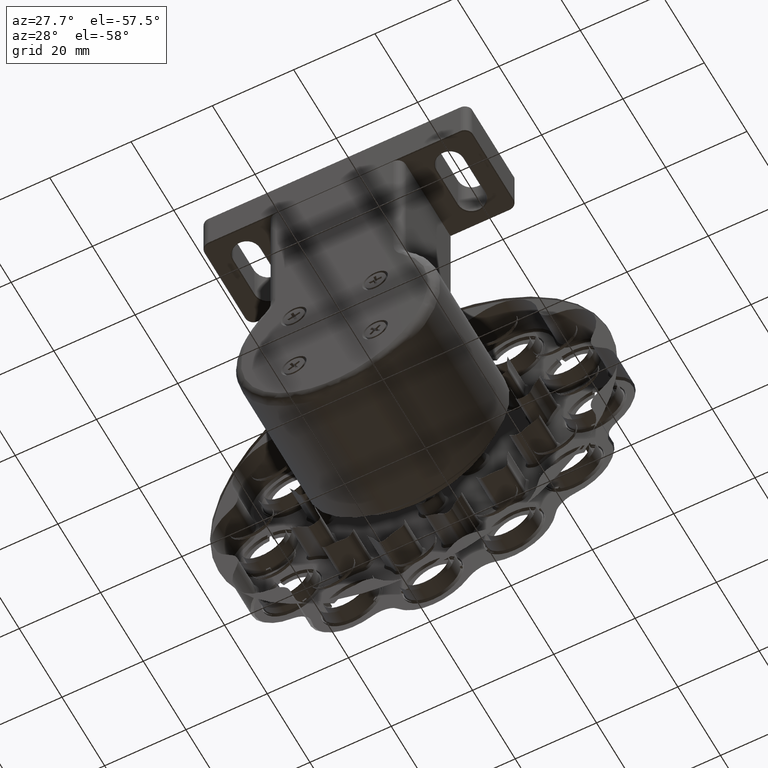
[diagram: clean part render]
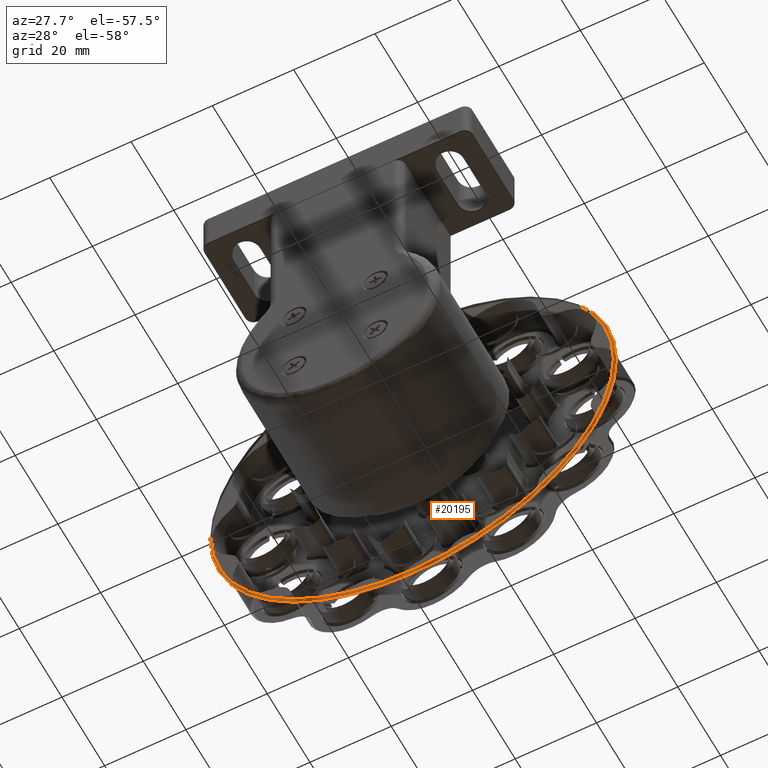
[diagram: same view with one face highlighted and labeled with its STEP entity id]
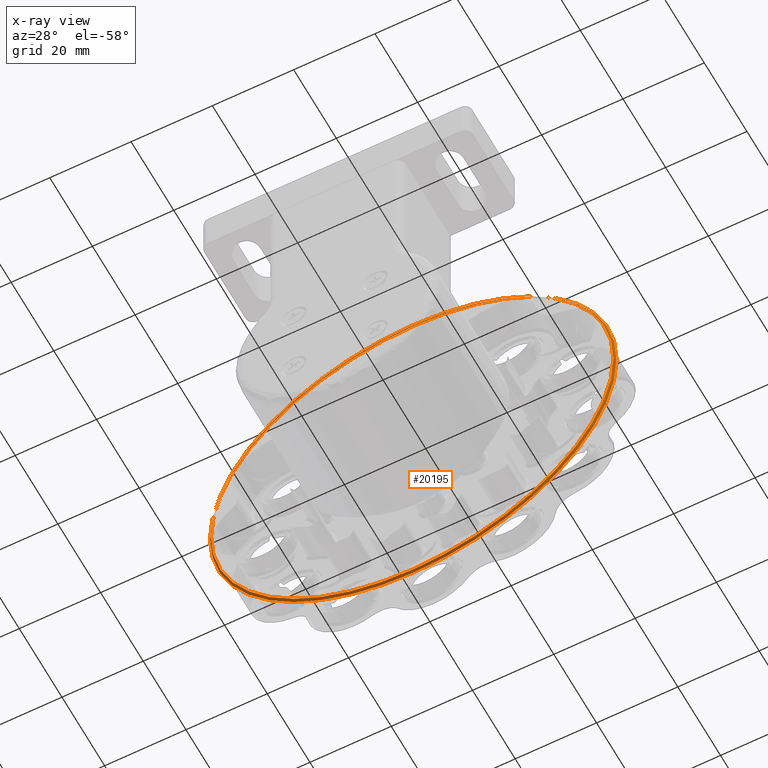
[diagram: x-ray of the same camera — body ghosted, the highlighted face saturated]
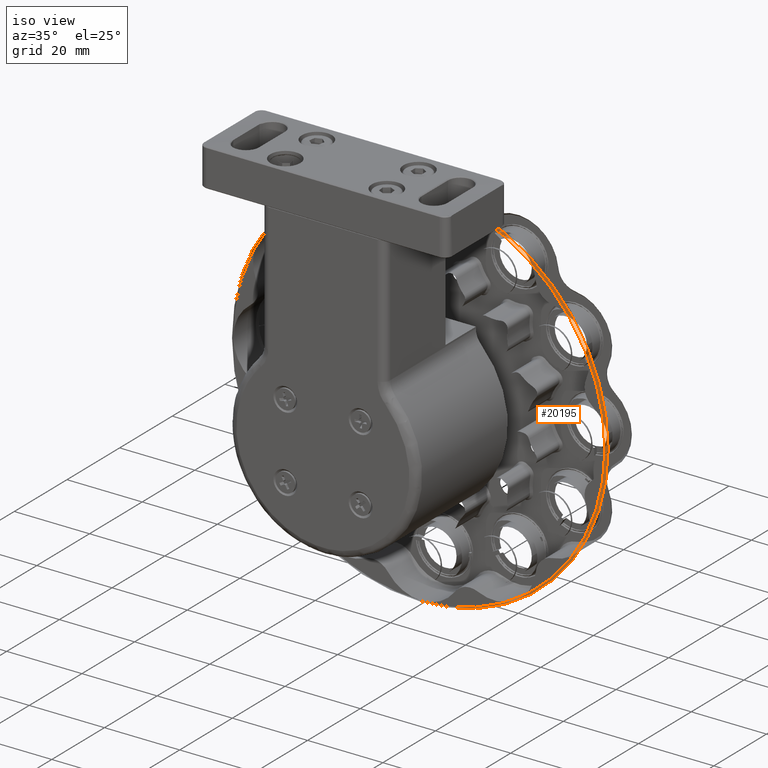
[diagram: same view with one face highlighted and labeled with its STEP entity id]
A machine part, auxiliary view. The second image highlights one B-rep face of the part: STEP entity #20195.
The next image is the same camera in x-ray: the body ghosted, the highlighted face saturated — about 9% of this face is hidden behind the body in this view.
A second angle (iso view) of the same face is appended — the face is thin or edge-on in the first view.
In plain terms, the highlighted conical surface has half-angle 45 deg.
Its self-contained STEP definition (entity closure, byte-faithful):
#249 = ORIENTED_EDGE ( 'NONE', *, *, #12784, .F. ) ;
#3095 = CIRCLE ( 'NONE', #19870, 50.00000000000000000 ) ;
#3672 = FACE_OUTER_BOUND ( 'NONE', #8005, .T. ) ;
#5126 = VERTEX_POINT ( 'NONE', #18614 ) ;
#8005 = EDGE_LOOP ( 'NONE', ( #17397 ) ) ;
#8326 = DIRECTION ( 'NONE',  ( 0.000000000000000000, 0.000000000000000000, 1.000000000000000000 ) ) ;
#9233 = CARTESIAN_POINT ( 'NONE',  ( -18.03769428238041428, 27.98610521441033328, 69.99999999999998579 ) ) ;
#11220 = EDGE_CURVE ( 'NONE', #5126, #5126, #3095, .T. ) ;
#11428 = CARTESIAN_POINT ( 'NONE',  ( -18.03769428238041428, 27.98610521441033328, 119.5000000000000142 ) ) ;
#11464 = DIRECTION ( 'NONE',  ( 3.488278094132890012E-29, -1.000000000000000000, -0.000000000000000000 ) ) ;
#12784 = EDGE_CURVE ( 'NONE', #23141, #23141, #13738, .T. ) ;
#12826 = CARTESIAN_POINT ( 'NONE',  ( -18.03769428238041428, 28.48610521441031906, 69.99999999999998579 ) ) ;
#13738 = CIRCLE ( 'NONE', #26692, 49.50000000000001421 ) ;
#16115 = DIRECTION ( 'NONE',  ( 1.000000000000000000, 6.938893903907228378E-17, 2.087219286295294296E-12 ) ) ;
#17397 = ORIENTED_EDGE ( 'NONE', *, *, #11220, .F. ) ;
#18614 = CARTESIAN_POINT ( 'NONE',  ( 31.96230571761958572, 28.48610521441031551, 70.00000000010435031 ) ) ;
#18659 = DIRECTION ( 'NONE',  ( 0.000000000000000000, 0.000000000000000000, 1.000000000000000000 ) ) ;
#19870 = AXIS2_PLACEMENT_3D ( 'NONE', #20334, #11464, #16115 ) ;
#20195 = ADVANCED_FACE ( 'NONE', ( #24245, #3672 ), #20269, .F. ) ;
#20269 = CONICAL_SURFACE ( 'NONE', #26983, 50.00000000000000000, 0.7853981633974415066 ) ;
#20334 = CARTESIAN_POINT ( 'NONE',  ( -18.03769428238041428, 28.48610521441031196, 69.99999999999998579 ) ) ;
#23141 = VERTEX_POINT ( 'NONE', #11428 ) ;
#24245 = FACE_BOUND ( 'NONE', #25833, .T. ) ;
#25288 = DIRECTION ( 'NONE',  ( 0.000000000000000000, 1.000000000000000000, 0.000000000000000000 ) ) ;
#25833 = EDGE_LOOP ( 'NONE', ( #249 ) ) ;
#26692 = AXIS2_PLACEMENT_3D ( 'NONE', #9233, #25288, #18659 ) ;
#26983 = AXIS2_PLACEMENT_3D ( 'NONE', #12826, #28886, #8326 ) ;
#28886 = DIRECTION ( 'NONE',  ( 0.000000000000000000, 1.000000000000000000, 0.000000000000000000 ) ) ;